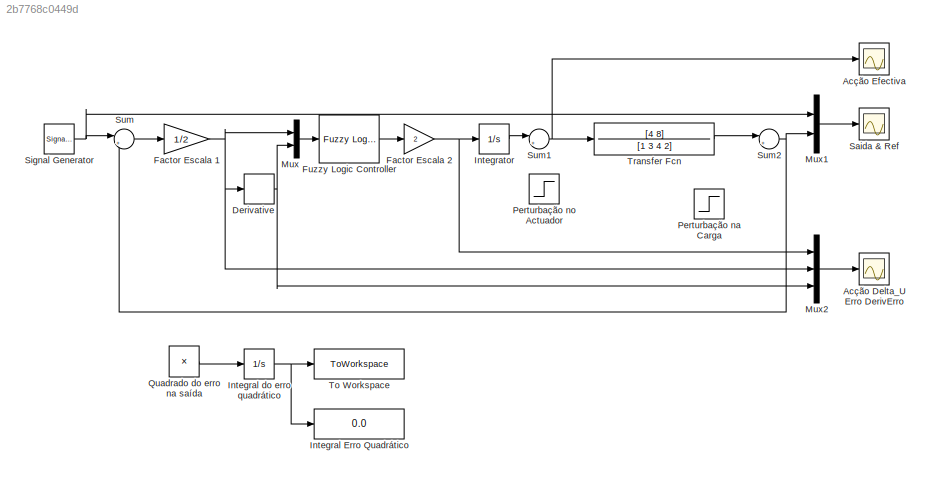
MODEL slx_2b7768c0449d
KIND model
BLOCK [Scope] Acção Delta_U Erro DerivErro
  Floating = off
  LegendLocations = 0.86591     0.86236     0.10597    0.080407
  NumInputPorts = 1
  Ports = [1]
  SaveName = ScopeData1
  ShowLegends = on
BLOCK [Scope] Acção Efectiva
  Floating = off
  NumInputPorts = 1
  Ports = [1]
  SaveName = ScopeData2
  ShowLegends = off
BLOCK [Derivative] Derivative
BLOCK [Gain] Factor Escala 1
  Gain = 1/2
  OutDataTypeStr = Inherit: Inherit via internal rule
  ParamDataTypeStr = Inherit: Inherit via internal rule
  SaturateOnIntegerOverflow = off
BLOCK [Gain] Factor Escala 2
  Gain = 2
  OutDataTypeStr = Inherit: Inherit via internal rule
  ParamDataTypeStr = Inherit: Inherit via internal rule
  SaturateOnIntegerOverflow = off
BLOCK [Reference] Fuzzy Logic Controller  REF=fuzblock/Fuzzy Logic   (lib defined in mdl_858b3b3e7478)
Controller
  Ports = [1, 1]
  SourceBlock = fuzblock/Fuzzy Logic \nController
  SourceType = FIS
  fis = 'mamdani.fis'
BLOCK [Display] Integral Erro Quadrático
  Decimation = 1
  Ports = [1]
BLOCK [Integrator] Integral do erro quadrático
  Ports = [1, 1]
BLOCK [Integrator] Integrator
  Ports = [1, 1]
BLOCK [Mux] Mux
  DisplayOption = bar
  Inputs = 2
  Ports = [2, 1]
BLOCK [Mux] Mux1
  DisplayOption = bar
  Inputs = 2
  Ports = [2, 1]
BLOCK [Mux] Mux2
  DisplayOption = bar
  Inputs = 3
  Ports = [3, 1]
BLOCK [Step] Perturbação na Carga
  Before = 1
  SampleTime = 0
BLOCK [Step] Perturbação no Actuador
  Before = 1
  SampleTime = 0
BLOCK [Product] Quadrado do erro na saída
  InputSameDT = off
  OutDataTypeStr = Inherit: Inherit via internal rule
  Ports = [2, 1]
  RndMeth = Floor
  SaturateOnIntegerOverflow = off
BLOCK [Scope] Saida & Ref
  DataFormat = StructureWithTime
  Floating = off
  LegendLocations = 0.8601     0.88743       0.112    0.055497
  MaxDataPoints = 50000
  NumInputPorts = 1
  Ports = [1]
  SampleTime = 0
  ShowLegends = on
BLOCK [SignalGenerator] Signal Generator
  Amplitude = -1
  Frequency = 0.01
  Ports = [0, 1]
  Units = rad/sec
  WaveForm = square
BLOCK [Sum] Sum
  IconShape = round
  InputSameDT = off
  Inputs = |+-
  OutDataTypeStr = Inherit: Inherit via internal rule
  Ports = [2, 1]
  SaturateOnIntegerOverflow = off
BLOCK [Sum] Sum1
  IconShape = round
  InputSameDT = off
  Inputs = |+-
  OutDataTypeStr = Inherit: Inherit via internal rule
  Ports = [2, 1]
  SaturateOnIntegerOverflow = off
BLOCK [Sum] Sum2
  IconShape = round
  InputSameDT = off
  Inputs = |+-
  OutDataTypeStr = Inherit: Inherit via internal rule
  Ports = [2, 1]
  SaturateOnIntegerOverflow = off
BLOCK [ToWorkspace] To Workspace
  FixptAsFi = on
  MaxDataPoints = inf
  Ports = [1]
  SampleTime = -1
  Save2DSignal = 3-D array (concatenate along third dimension)
  SaveFormat = Timeseries
  VariableName = Performance
BLOCK [TransferFcn] Transfer Fcn
  Denominator = [1 3 4 2]
  Numerator = [4 8]
NET Derivative:1 -> Mux2:3, Mux:2
NET Factor Escala 1:1 -> Derivative:1, Mux2:2, Mux:1
NET Factor Escala 2:1 -> Integrator:1, Mux2:1
LINE Fuzzy Logic Controller:1 -> Factor Escala 2:1
NET Integral do erro quadrático:1 -> Integral Erro Quadrático:1, To Workspace:1
LINE Integrator:1 -> Sum1:1
LINE Mux1:1 -> Saida & Ref:1
LINE Mux2:1 -> Acção Delta_U Erro DerivErro:1
LINE Mux:1 -> Fuzzy Logic Controller:1
LINE Quadrado do erro na saída:1 -> Integral do erro quadrático:1
NET Signal Generator:1 -> Mux1:1, Sum:1
NET Sum1:1 -> Acção Efectiva:1, Transfer Fcn:1
NET Sum2:1 -> Mux1:2, Sum:2
LINE Sum:1 -> Factor Escala 1:1
LINE Transfer Fcn:1 -> Sum2:1
note: NET lines group one-source signal fan-out (src -> all destinations, sorted); 1:1 wires keep LINE
